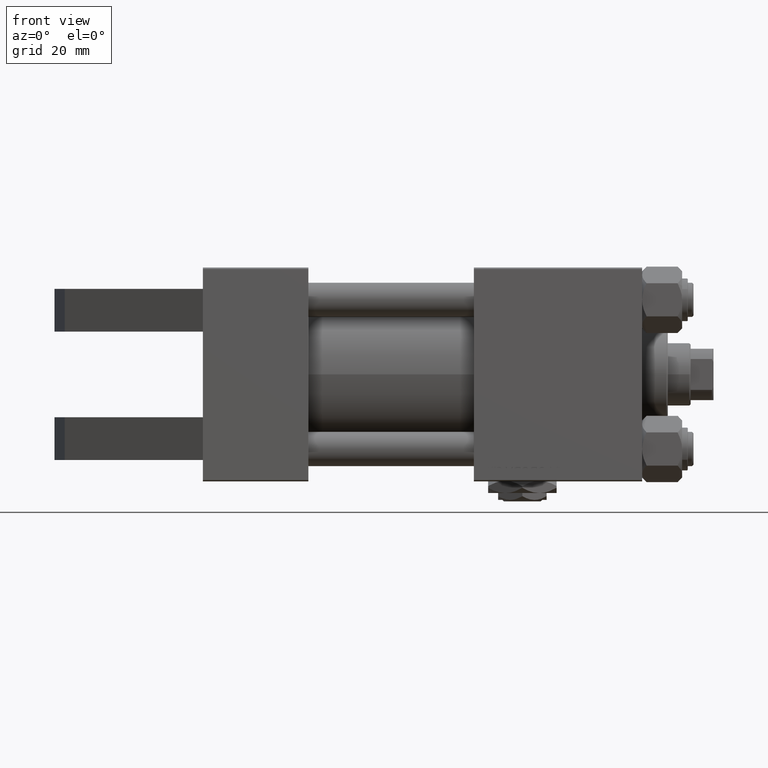
[diagram: clean part render]
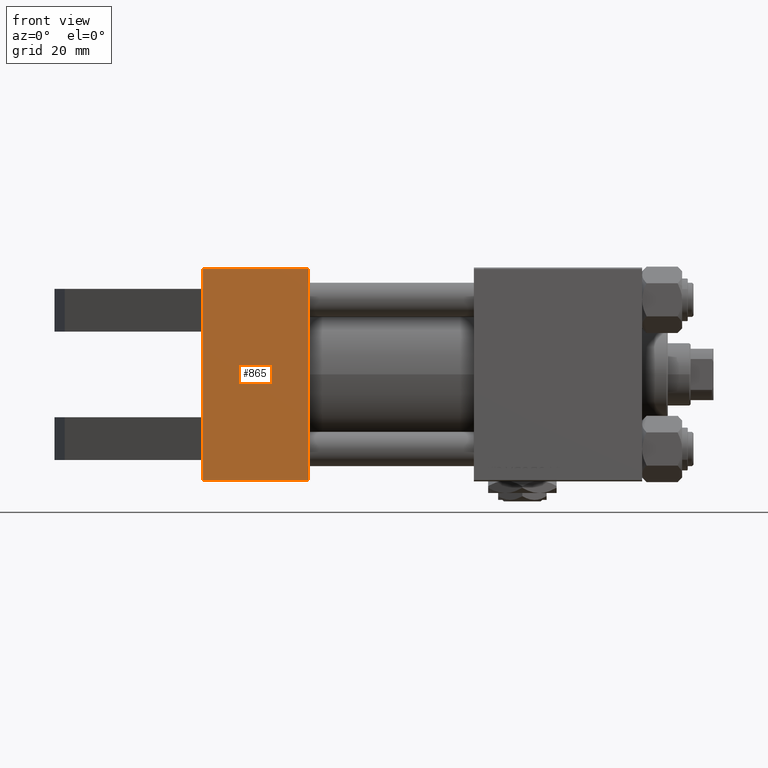
[diagram: same view with one face highlighted and labeled with its STEP entity id]
A machine part, front view. The second image highlights one B-rep face of the part: STEP entity #865.
In plain terms, the highlighted planar face has unit normal (0, -1, -0).
Its self-contained STEP definition (entity closure, byte-faithful):
#426 = LINE ( 'NONE', #15758, #1868 ) ;
#865 = ADVANCED_FACE ( 'NONE', ( #43590 ), #8283, .T. ) ;
#1326 = EDGE_CURVE ( 'NONE', #12877, #40234, #22201, .T. ) ;
#1487 = DIRECTION ( 'NONE',  ( 1.000000000000000000, 0.000000000000000000, 0.000000000000000000 ) ) ;
#1653 = ORIENTED_EDGE ( 'NONE', *, *, #1326, .T. ) ;
#1868 = VECTOR ( 'NONE', #35736, 1000.000000000000000 ) ;
#3383 = VECTOR ( 'NONE', #6846, 1000.000000000000000 ) ;
#5606 = CARTESIAN_POINT ( 'NONE',  ( 37.00000000000000000, 36.99999999999997868, -37.50000000000000000 ) ) ;
#6846 = DIRECTION ( 'NONE',  ( 0.000000000000000000, -1.000000000000000000, -9.251858538542972814E-17 ) ) ;
#6914 = LINE ( 'NONE', #15227, #17351 ) ;
#8186 = VERTEX_POINT ( 'NONE', #30035 ) ;
#8283 = PLANE ( 'NONE',  #13707 ) ;
#10392 = CARTESIAN_POINT ( 'NONE',  ( 0.000000000000000000, 36.99999999999997868, -37.50000000000000000 ) ) ;
#11804 = ORIENTED_EDGE ( 'NONE', *, *, #18624, .F. ) ;
#11822 = ORIENTED_EDGE ( 'NONE', *, *, #39516, .T. ) ;
#12877 = VERTEX_POINT ( 'NONE', #5606 ) ;
#12884 = CARTESIAN_POINT ( 'NONE',  ( 0.000000000000000000, -30.00000000000000000, -37.50000000000000711 ) ) ;
#13302 = VERTEX_POINT ( 'NONE', #32207 ) ;
#13375 = CARTESIAN_POINT ( 'NONE',  ( 0.000000000000000000, -37.00000000000002132, -37.50000000000000711 ) ) ;
#13707 = AXIS2_PLACEMENT_3D ( 'NONE', #28261, #24132, #24390 ) ;
#15227 = CARTESIAN_POINT ( 'NONE',  ( 0.000000000000000000, -30.00000000000000000, -37.50000000000000711 ) ) ;
#15758 = CARTESIAN_POINT ( 'NONE',  ( 0.000000000000000000, 37.49999999999999289, -37.50000000000000000 ) ) ;
#16109 = CARTESIAN_POINT ( 'NONE',  ( 0.000000000000000000, 30.00000000000000000, -37.50000000000000711 ) ) ;
#16723 = ORIENTED_EDGE ( 'NONE', *, *, #43880, .T. ) ;
#17351 = VECTOR ( 'NONE', #50038, 1000.000000000000000 ) ;
#18311 = DIRECTION ( 'NONE',  ( 0.000000000000000000, -1.000000000000000000, -9.251858538542972814E-17 ) ) ;
#18548 = CARTESIAN_POINT ( 'NONE',  ( 0.000000000000000000, 37.49999999999999289, -37.50000000000000000 ) ) ;
#18624 = EDGE_CURVE ( 'NONE', #26521, #8186, #30446, .T. ) ;
#19448 = VERTEX_POINT ( 'NONE', #50019 ) ;
#21500 = LINE ( 'NONE', #32894, #24977 ) ;
#22033 = VECTOR ( 'NONE', #18311, 1000.000000000000000 ) ;
#22201 = LINE ( 'NONE', #38282, #22033 ) ;
#22719 = CARTESIAN_POINT ( 'NONE',  ( 0.000000000000000000, -15.00000000000000000, -37.50000000000000711 ) ) ;
#23273 = ORIENTED_EDGE ( 'NONE', *, *, #46261, .T. ) ;
#23912 = LINE ( 'NONE', #16109, #37383 ) ;
#24132 = DIRECTION ( 'NONE',  ( 0.000000000000000000, 9.251858538542972814E-17, -1.000000000000000000 ) ) ;
#24390 = DIRECTION ( 'NONE',  ( 0.000000000000000000, 1.000000000000000000, 9.251858538542972814E-17 ) ) ;
#24977 = VECTOR ( 'NONE', #1487, 1000.000000000000000 ) ;
#26048 = CARTESIAN_POINT ( 'NONE',  ( 0.000000000000000000, 37.49999999999999289, -37.50000000000000000 ) ) ;
#26521 = VERTEX_POINT ( 'NONE', #12884 ) ;
#28261 = CARTESIAN_POINT ( 'NONE',  ( 37.00000000000000000, 37.49999999999999289, -37.50000000000000000 ) ) ;
#29072 = VECTOR ( 'NONE', #38516, 1000.000000000000000 ) ;
#30035 = CARTESIAN_POINT ( 'NONE',  ( 0.000000000000000000, -37.00000000000002132, -37.50000000000000711 ) ) ;
#30446 = LINE ( 'NONE', #26048, #3383 ) ;
#30848 = VECTOR ( 'NONE', #48221, 1000.000000000000000 ) ;
#32207 = CARTESIAN_POINT ( 'NONE',  ( 0.000000000000000000, 30.00000000000000000, -37.50000000000000711 ) ) ;
#32449 = DIRECTION ( 'NONE',  ( -0.000000000000000000, -1.000000000000000000, -0.000000000000000000 ) ) ;
#32894 = CARTESIAN_POINT ( 'NONE',  ( 37.00000000000000000, 36.99999999999997868, -37.50000000000000000 ) ) ;
#32989 = EDGE_LOOP ( 'NONE', ( #49712, #16723, #1653, #23273, #11804, #11822, #37534, #35150 ) ) ;
#35150 = ORIENTED_EDGE ( 'NONE', *, *, #42528, .F. ) ;
#35736 = DIRECTION ( 'NONE',  ( 0.000000000000000000, -1.000000000000000000, -9.251858538542972814E-17 ) ) ;
#37383 = VECTOR ( 'NONE', #32449, 1000.000000000000000 ) ;
#37534 = ORIENTED_EDGE ( 'NONE', *, *, #47347, .F. ) ;
#38282 = CARTESIAN_POINT ( 'NONE',  ( 37.00000000000000000, 37.49999999999999289, -37.50000000000000000 ) ) ;
#38516 = DIRECTION ( 'NONE',  ( 0.000000000000000000, -1.000000000000000000, -9.251858538542972814E-17 ) ) ;
#39516 = EDGE_CURVE ( 'NONE', #26521, #40825, #6914, .T. ) ;
#40234 = VERTEX_POINT ( 'NONE', #46539 ) ;
#40825 = VERTEX_POINT ( 'NONE', #22719 ) ;
#41594 = VERTEX_POINT ( 'NONE', #10392 ) ;
#42528 = EDGE_CURVE ( 'NONE', #13302, #19448, #23912, .T. ) ;
#43068 = EDGE_CURVE ( 'NONE', #41594, #13302, #50499, .T. ) ;
#43590 = FACE_OUTER_BOUND ( 'NONE', #32989, .T. ) ;
#43880 = EDGE_CURVE ( 'NONE', #41594, #12877, #21500, .T. ) ;
#44550 = LINE ( 'NONE', #13375, #30848 ) ;
#46261 = EDGE_CURVE ( 'NONE', #40234, #8186, #44550, .T. ) ;
#46539 = CARTESIAN_POINT ( 'NONE',  ( 37.00000000000000000, -37.00000000000002132, -37.50000000000000711 ) ) ;
#47347 = EDGE_CURVE ( 'NONE', #19448, #40825, #426, .T. ) ;
#48221 = DIRECTION ( 'NONE',  ( -1.000000000000000000, 0.000000000000000000, 0.000000000000000000 ) ) ;
#49712 = ORIENTED_EDGE ( 'NONE', *, *, #43068, .F. ) ;
#50019 = CARTESIAN_POINT ( 'NONE',  ( 0.000000000000000000, 15.00000000000000000, -37.50000000000000000 ) ) ;
#50038 = DIRECTION ( 'NONE',  ( -0.000000000000000000, 1.000000000000000000, -0.000000000000000000 ) ) ;
#50499 = LINE ( 'NONE', #18548, #29072 ) ;